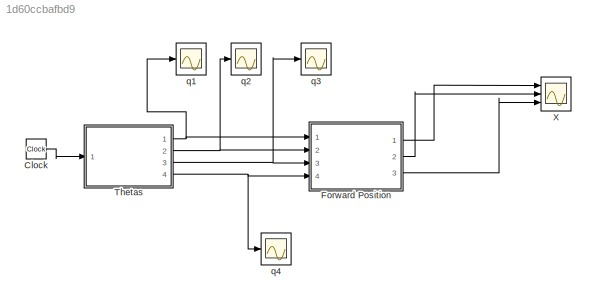
MODEL slx_1d60ccbafbd9
KIND model
CONFIG AbsTol = auto
CONFIG EnableMultiTasking = on
CONFIG FixedStep = auto
CONFIG MaxStep = auto
CONFIG MinStep = auto
CONFIG RelTol = 1e-3
CONFIG SampleTimeConstraint = Unconstrained
CONFIG SolverName = ode45
CONFIG StartTime = 0.0
CONFIG StopTime = 10.0
BLOCK [Clock] Clock
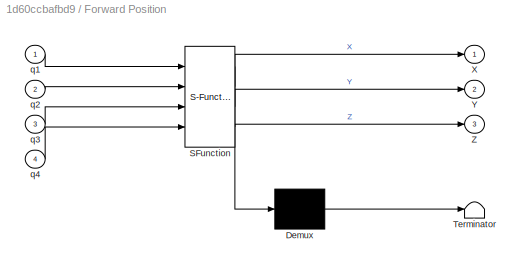
BLOCK [SubSystem] Forward Position
  ErrorFcn = Stateflow.Translate.translate
  PermitHierarchicalResolution = ExplicitOnly
  Ports = [4, 3]
  RequestExecContextInheritance = off
  SFBlockType = MATLAB Function
  TreatAsAtomicUnit = on
BLOCK [Demux] Forward Position/ Demux 
  Outputs = 1
  Ports = [1, 1]
BLOCK [S-Function] Forward Position/ SFunction 
  EnableBusSupport = on
  FunctionName = sf_sfun
  PortCounts = [4 4]
  Ports = [4, 4]
  SFcnIsStateOwnerBlock = off
  SFunctionDeploymentMode = off
  Tag = Stateflow S-Function 1
BLOCK [Terminator] Forward Position/ Terminator 
BLOCK [Outport] Forward Position/X
BLOCK [Outport] Forward Position/Y
  Port = 2
BLOCK [Outport] Forward Position/Z
  Port = 3
BLOCK [Inport] Forward Position/q1
BLOCK [Inport] Forward Position/q2
  Port = 2
BLOCK [Inport] Forward Position/q3
  Port = 3
BLOCK [Inport] Forward Position/q4
  Port = 4
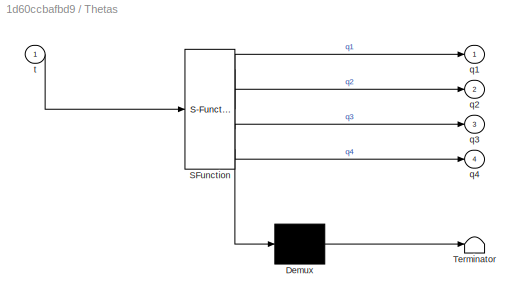
BLOCK [SubSystem] Thetas
  ErrorFcn = Stateflow.Translate.translate
  PermitHierarchicalResolution = ExplicitOnly
  Ports = [1, 4]
  RequestExecContextInheritance = off
  SFBlockType = MATLAB Function
  TreatAsAtomicUnit = on
BLOCK [Demux] Thetas/ Demux 
  Outputs = 1
  Ports = [1, 1]
BLOCK [S-Function] Thetas/ SFunction 
  EnableBusSupport = on
  FunctionName = sf_sfun
  PortCounts = [1 5]
  Ports = [1, 5]
  SFcnIsStateOwnerBlock = off
  SFunctionDeploymentMode = off
  Tag = Stateflow S-Function 2
BLOCK [Terminator] Thetas/ Terminator 
BLOCK [Outport] Thetas/q1
BLOCK [Outport] Thetas/q2
  Port = 2
BLOCK [Outport] Thetas/q3
  Port = 3
BLOCK [Outport] Thetas/q4
  Port = 4
BLOCK [Inport] Thetas/t
BLOCK [Scope] X
  Floating = off
  NumInputPorts = 3
  Ports = [3]
  ScopeSpecificationString = Simulink.scopes.TimeScopeBlockCfg('CurrentConfiguration', extmgr.ConfigurationSet(extmgr.Configuration('Core','General UI',true,'FigureColor',[1 1 1]),extmgr.Configuration('Core','Source UI',true),extmgr.Configuration('Sources','WiredSimulink',true,'DataLoggingLimitDataPoints',true,'DataLoggingSaveFormat','Array','DataLoggingDecimation','1','DataLoggingDecimateData',true),extmgr.Configuration('Vis...<+2104ch>
BLOCK [Scope] q1
  Floating = off
  NumInputPorts = 1
  Ports = [1]
  ScopeSpecificationString = Simulink.scopes.TimeScopeBlockCfg('CurrentConfiguration', extmgr.ConfigurationSet(extmgr.Configuration('Core','General UI',true),extmgr.Configuration('Core','Source UI',true),extmgr.Configuration('Sources','WiredSimulink',true,'DataLoggingVariableName','ScopeData3','DataLoggingLimitDataPoints',true,'DataLoggingSaveFormat','Array','DataLoggingDecimation','1','DataLoggingDecimateData',true),extmgr.C...<+1670ch>
BLOCK [Scope] q2
  Floating = off
  NumInputPorts = 1
  Ports = [1]
  ScopeSpecificationString = Simulink.scopes.TimeScopeBlockCfg('CurrentConfiguration', extmgr.ConfigurationSet(extmgr.Configuration('Core','General UI',true),extmgr.Configuration('Core','Source UI',true),extmgr.Configuration('Sources','WiredSimulink',true,'DataLoggingVariableName','ScopeData4','DataLoggingLimitDataPoints',true,'DataLoggingSaveFormat','Array','DataLoggingDecimation','1','DataLoggingDecimateData',true),extmgr.C...<+899ch>
BLOCK [Scope] q3
  Floating = off
  NumInputPorts = 1
  Ports = [1]
  ScopeSpecificationString = Simulink.scopes.TimeScopeBlockCfg('CurrentConfiguration', extmgr.ConfigurationSet(extmgr.Configuration('Core','General UI',true),extmgr.Configuration('Core','Source UI',true),extmgr.Configuration('Sources','WiredSimulink',true,'DataLoggingVariableName','ScopeData5','DataLoggingLimitDataPoints',true,'DataLoggingSaveFormat','Array','DataLoggingDecimation','1','DataLoggingDecimateData',true),extmgr.C...<+899ch>
BLOCK [Scope] q4
  Floating = off
  NumInputPorts = 1
  Ports = [1]
  ScopeSpecificationString = Simulink.scopes.TimeScopeBlockCfg('CurrentConfiguration', extmgr.ConfigurationSet(extmgr.Configuration('Core','General UI',true),extmgr.Configuration('Core','Source UI',true),extmgr.Configuration('Sources','WiredSimulink',true,'DataLoggingVariableName','ScopeData6','DataLoggingLimitDataPoints',true,'DataLoggingSaveFormat','Array','DataLoggingDecimation','1','DataLoggingDecimateData',true),extmgr.C...<+899ch>
LINE Clock:1 -> Thetas:1
LINE Forward Position:1 -> X:1
LINE Forward Position:2 -> X:2
LINE Forward Position:3 -> X:3
NET Thetas:1 -> Forward Position:1, q1:1
NET Thetas:2 -> Forward Position:2, q2:1
NET Thetas:3 -> Forward Position:3, q3:1
NET Thetas:4 -> Forward Position:4, q4:1
note: NET lines group one-source signal fan-out (src -> all destinations, sorted); 1:1 wires keep LINE
CHART Forward Position states=1 transitions=1
  STATE_LABEL 'eML_blk_kernel()'
  STATE_LABEL 'SCRIPT:\nfunction [X,Y,Z] = fcn(q1,q2,q3,q4)\n \nX=  120*cos(q4)*(sin(q1)*sin(q3) + cos(q1)*cos(q2)*cos(q3)) - (537*cos(q1)*sin(q2))/5 - 120*cos(q1)*sin(q2)*sin(q4);\nY= - (537*sin(q1)*sin(q2))/5 - 120*cos(q4)*(cos(q1)*sin(q3) - cos(q2)*cos(q3)*sin(q1)) - 120*sin(q1)*sin(q2)*sin(q4);\nZ= 81/2 - 120*cos(q2)*sin(q4) - 120*cos(q3)*cos(q4)*sin(q2) - (537*cos(q2))/5;\n\n\nend'
CHART Thetas states=1 transitions=1
  STATE_LABEL 'eML_blk_kernel()'
  STATE_LABEL 'SCRIPT:\nfunction [q1,q2,q3,q4] = fcn(t)\n%#codegen\nq1=pi/2;\nq2=pi/2;\nq3=pi/2;\nq4=pi/2;\n\nend'
CHART  states=0 transitions=0
CHART  states=0 transitions=0
